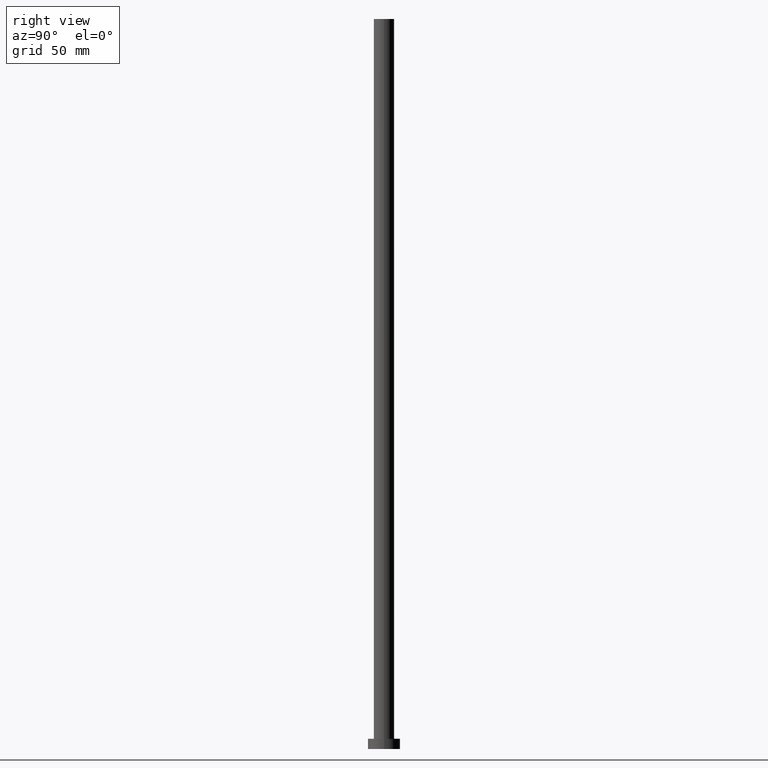
[diagram: clean part render]
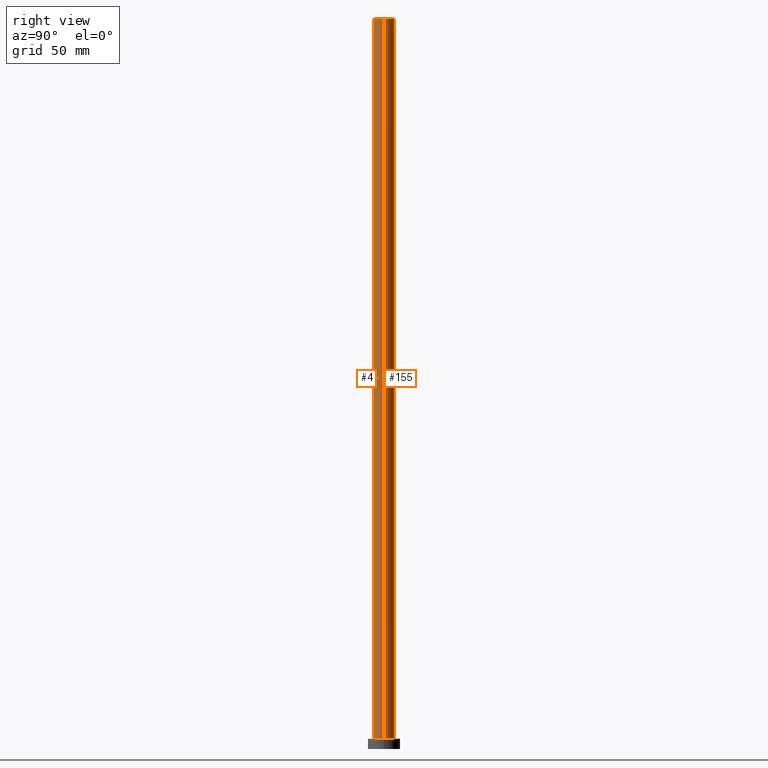
[diagram: same view with one multi-face feature highlighted, each face labeled with its STEP entity id]
A machine part, right view. The highlighted faces form ONE feature: a constant-radius fillet chain: 2 tangent blend faces with common blend radius 7 mm. The faces share edges in the B-rep.
Their STEP definitions:
[1] entity #155 (Cylinder):
#5 = DIRECTION ( 'NONE',  ( -0.000000000000000000, -0.000000000000000000, -1.000000000000000000 ) ) ;
#7 = VERTEX_POINT ( 'NONE', #166 ) ;
#9 = CIRCLE ( 'NONE', #47, 7.000000000000000000 ) ;
#12 = DIRECTION ( 'NONE',  ( -0.000000000000000000, -0.000000000000000000, -1.000000000000000000 ) ) ;
#14 = CARTESIAN_POINT ( 'NONE',  ( -7.000000000000000000, 0.000000000000000000, 500.0000000000000000 ) ) ;
#25 = CYLINDRICAL_SURFACE ( 'NONE', #138, 7.000000000000000000 ) ;
#30 = CARTESIAN_POINT ( 'NONE',  ( 7.000000000000000000, 8.572527594031473190E-16, 500.0000000000000000 ) ) ;
#31 = VECTOR ( 'NONE', #5, 1000.000000000000000 ) ;
#47 = AXIS2_PLACEMENT_3D ( 'NONE', #161, #182, #50 ) ;
#50 = DIRECTION ( 'NONE',  ( 1.000000000000000000, 0.000000000000000000, 0.000000000000000000 ) ) ;
#53 = EDGE_CURVE ( 'NONE', #7, #163, #212, .T. ) ;
#55 = VERTEX_POINT ( 'NONE', #14 ) ;
#63 = VERTEX_POINT ( 'NONE', #30 ) ;
#64 = ORIENTED_EDGE ( 'NONE', *, *, #53, .T. ) ;
#70 = ORIENTED_EDGE ( 'NONE', *, *, #228, .F. ) ;
#79 = CARTESIAN_POINT ( 'NONE',  ( -7.000000000000000000, 0.000000000000000000, 500.0000000000000000 ) ) ;
#81 = FACE_OUTER_BOUND ( 'NONE', #176, .T. ) ;
#103 = AXIS2_PLACEMENT_3D ( 'NONE', #231, #209, #116 ) ;
#104 = VECTOR ( 'NONE', #12, 1000.000000000000000 ) ;
#110 = CARTESIAN_POINT ( 'NONE',  ( -7.000000000000000000, 0.000000000000000000, 7.000000000000000000 ) ) ;
#112 = CARTESIAN_POINT ( 'NONE',  ( 7.000000000000000000, 8.572527594031473190E-16, 500.0000000000000000 ) ) ;
#116 = DIRECTION ( 'NONE',  ( 1.000000000000000000, 0.000000000000000000, 0.000000000000000000 ) ) ;
#128 = LINE ( 'NONE', #112, #104 ) ;
#136 = EDGE_CURVE ( 'NONE', #55, #163, #177, .T. ) ;
#138 = AXIS2_PLACEMENT_3D ( 'NONE', #183, #158, #241 ) ;
#152 = ORIENTED_EDGE ( 'NONE', *, *, #178, .T. ) ;
#155 = ADVANCED_FACE ( 'NONE', ( #81 ), #25, .T. ) ;
#158 = DIRECTION ( 'NONE',  ( -0.000000000000000000, -0.000000000000000000, -1.000000000000000000 ) ) ;
#161 = CARTESIAN_POINT ( 'NONE',  ( 0.000000000000000000, 0.000000000000000000, 500.0000000000000000 ) ) ;
#163 = VERTEX_POINT ( 'NONE', #110 ) ;
#166 = CARTESIAN_POINT ( 'NONE',  ( 7.000000000000000000, 8.572527594031473190E-16, 7.000000000000000000 ) ) ;
#176 = EDGE_LOOP ( 'NONE', ( #70, #152, #64, #238 ) ) ;
#177 = LINE ( 'NONE', #79, #31 ) ;
#178 = EDGE_CURVE ( 'NONE', #63, #7, #128, .T. ) ;
#182 = DIRECTION ( 'NONE',  ( 0.000000000000000000, 0.000000000000000000, 1.000000000000000000 ) ) ;
#183 = CARTESIAN_POINT ( 'NONE',  ( 0.000000000000000000, 0.000000000000000000, 500.0000000000000000 ) ) ;
#209 = DIRECTION ( 'NONE',  ( 0.000000000000000000, 0.000000000000000000, 1.000000000000000000 ) ) ;
#212 = CIRCLE ( 'NONE', #103, 7.000000000000000000 ) ;
#228 = EDGE_CURVE ( 'NONE', #63, #55, #9, .T. ) ;
#231 = CARTESIAN_POINT ( 'NONE',  ( 0.000000000000000000, 0.000000000000000000, 7.000000000000000000 ) ) ;
#238 = ORIENTED_EDGE ( 'NONE', *, *, #136, .F. ) ;
#241 = DIRECTION ( 'NONE',  ( -1.000000000000000000, 0.000000000000000000, 0.000000000000000000 ) ) ;
[2] entity #4 (Cylinder):
#4 = ADVANCED_FACE ( 'NONE', ( #249 ), #190, .T. ) ;
#5 = DIRECTION ( 'NONE',  ( -0.000000000000000000, -0.000000000000000000, -1.000000000000000000 ) ) ;
#7 = VERTEX_POINT ( 'NONE', #166 ) ;
#12 = DIRECTION ( 'NONE',  ( -0.000000000000000000, -0.000000000000000000, -1.000000000000000000 ) ) ;
#14 = CARTESIAN_POINT ( 'NONE',  ( -7.000000000000000000, 0.000000000000000000, 500.0000000000000000 ) ) ;
#16 = DIRECTION ( 'NONE',  ( 1.000000000000000000, 0.000000000000000000, 0.000000000000000000 ) ) ;
#18 = AXIS2_PLACEMENT_3D ( 'NONE', #90, #58, #98 ) ;
#26 = ORIENTED_EDGE ( 'NONE', *, *, #178, .F. ) ;
#30 = CARTESIAN_POINT ( 'NONE',  ( 7.000000000000000000, 8.572527594031473190E-16, 500.0000000000000000 ) ) ;
#31 = VECTOR ( 'NONE', #5, 1000.000000000000000 ) ;
#34 = CIRCLE ( 'NONE', #18, 7.000000000000000000 ) ;
#40 = DIRECTION ( 'NONE',  ( 0.000000000000000000, 0.000000000000000000, 1.000000000000000000 ) ) ;
#55 = VERTEX_POINT ( 'NONE', #14 ) ;
#57 = ORIENTED_EDGE ( 'NONE', *, *, #196, .T. ) ;
#58 = DIRECTION ( 'NONE',  ( 0.000000000000000000, 0.000000000000000000, 1.000000000000000000 ) ) ;
#63 = VERTEX_POINT ( 'NONE', #30 ) ;
#67 = DIRECTION ( 'NONE',  ( -0.000000000000000000, -0.000000000000000000, -1.000000000000000000 ) ) ;
#79 = CARTESIAN_POINT ( 'NONE',  ( -7.000000000000000000, 0.000000000000000000, 500.0000000000000000 ) ) ;
#90 = CARTESIAN_POINT ( 'NONE',  ( 0.000000000000000000, 0.000000000000000000, 7.000000000000000000 ) ) ;
#98 = DIRECTION ( 'NONE',  ( 1.000000000000000000, 0.000000000000000000, 0.000000000000000000 ) ) ;
#104 = VECTOR ( 'NONE', #12, 1000.000000000000000 ) ;
#105 = EDGE_LOOP ( 'NONE', ( #26, #126, #170, #57 ) ) ;
#110 = CARTESIAN_POINT ( 'NONE',  ( -7.000000000000000000, 0.000000000000000000, 7.000000000000000000 ) ) ;
#112 = CARTESIAN_POINT ( 'NONE',  ( 7.000000000000000000, 8.572527594031473190E-16, 500.0000000000000000 ) ) ;
#121 = EDGE_CURVE ( 'NONE', #55, #63, #137, .T. ) ;
#126 = ORIENTED_EDGE ( 'NONE', *, *, #121, .F. ) ;
#128 = LINE ( 'NONE', #112, #104 ) ;
#136 = EDGE_CURVE ( 'NONE', #55, #163, #177, .T. ) ;
#137 = CIRCLE ( 'NONE', #162, 7.000000000000000000 ) ;
#162 = AXIS2_PLACEMENT_3D ( 'NONE', #169, #40, #16 ) ;
#163 = VERTEX_POINT ( 'NONE', #110 ) ;
#166 = CARTESIAN_POINT ( 'NONE',  ( 7.000000000000000000, 8.572527594031473190E-16, 7.000000000000000000 ) ) ;
#169 = CARTESIAN_POINT ( 'NONE',  ( 0.000000000000000000, 0.000000000000000000, 500.0000000000000000 ) ) ;
#170 = ORIENTED_EDGE ( 'NONE', *, *, #136, .T. ) ;
#174 = AXIS2_PLACEMENT_3D ( 'NONE', #234, #67, #253 ) ;
#177 = LINE ( 'NONE', #79, #31 ) ;
#178 = EDGE_CURVE ( 'NONE', #63, #7, #128, .T. ) ;
#190 = CYLINDRICAL_SURFACE ( 'NONE', #174, 7.000000000000000000 ) ;
#196 = EDGE_CURVE ( 'NONE', #163, #7, #34, .T. ) ;
#234 = CARTESIAN_POINT ( 'NONE',  ( 0.000000000000000000, 0.000000000000000000, 500.0000000000000000 ) ) ;
#249 = FACE_OUTER_BOUND ( 'NONE', #105, .T. ) ;
#253 = DIRECTION ( 'NONE',  ( -1.000000000000000000, 0.000000000000000000, 0.000000000000000000 ) ) ;